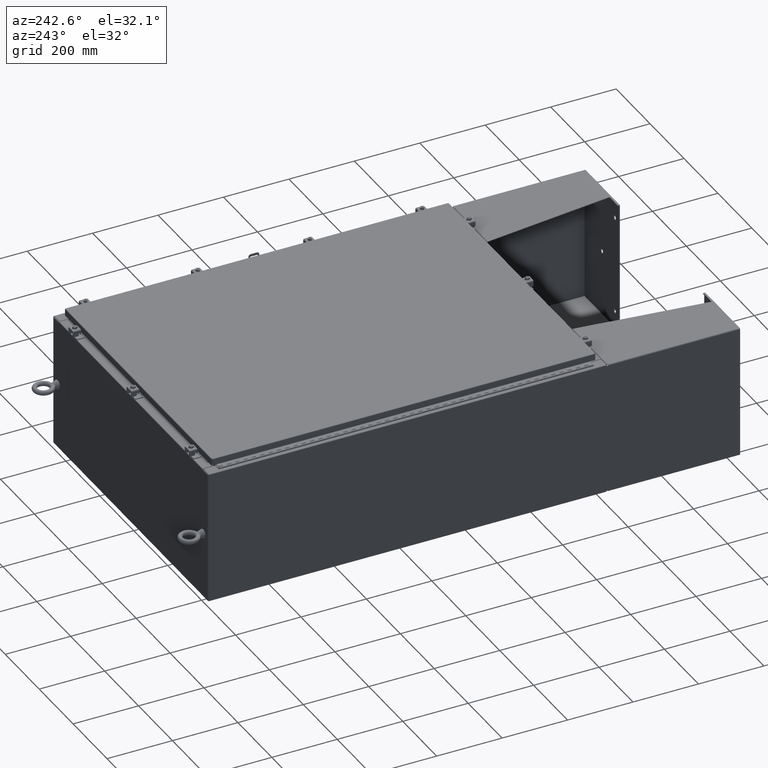
[diagram: clean part render]
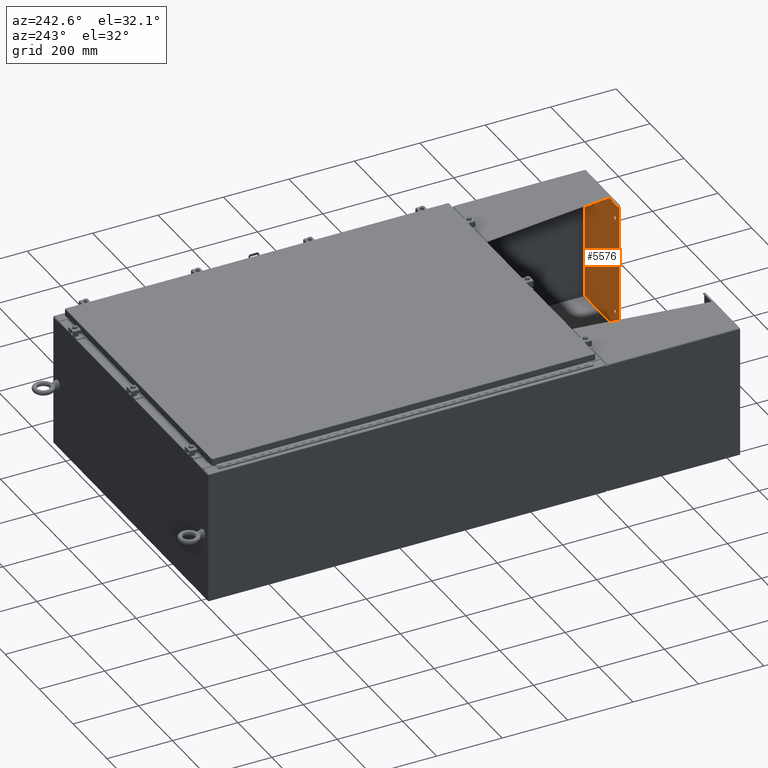
[diagram: same view with one face highlighted and labeled with its STEP entity id]
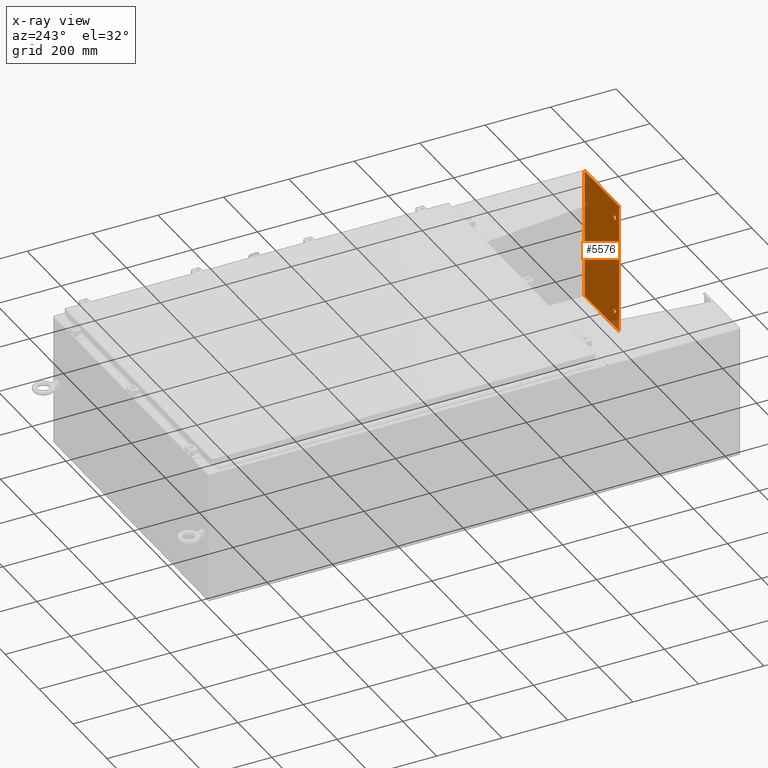
[diagram: x-ray of the same camera — body ghosted, the highlighted face saturated]
A machine part, auxiliary view. The second image highlights one B-rep face of the part: STEP entity #5576.
The next image is the same camera in x-ray: the body ghosted, the highlighted face saturated — about 2% of this face is hidden behind the body in this view.
In plain terms, the highlighted planar face has unit normal (0, -1, 0).
Its self-contained STEP definition (entity closure, byte-faithful):
#180 = DIRECTION ( 'NONE',  ( -1.000000000000000000, 0.0000000000000000000, -0.0000000000000000000 ) ) ;
#272 = CARTESIAN_POINT ( 'NONE',  ( -0.2500000000000000000, 3.061616997868383000E-017, 0.0000000000000000000 ) ) ;
#365 = CARTESIAN_POINT ( 'NONE',  ( -7.878999999999998700, 4.000000000000000000, 0.0000000000000000000 ) ) ;
#379 = EDGE_LOOP ( 'NONE', ( #52944, #54684 ) ) ;
#812 = VECTOR ( 'NONE', #45136, 39.37007874015748100 ) ;
#1072 = DIRECTION ( 'NONE',  ( 0.0000000000000000000, 1.000000000000000000, 0.0000000000000000000 ) ) ;
#1652 = ORIENTED_EDGE ( 'NONE', *, *, #47703, .T. ) ;
#2549 = LINE ( 'NONE', #4619, #37271 ) ;
#2705 = VERTEX_POINT ( 'NONE', #31404 ) ;
#3082 = DIRECTION ( 'NONE',  ( -1.000000000000000000, 0.0000000000000000000, 0.0000000000000000000 ) ) ;
#3493 = FACE_OUTER_BOUND ( 'NONE', #6929, .T. ) ;
#3902 = PLANE ( 'NONE',  #28938 ) ;
#3903 = DIRECTION ( 'NONE',  ( 1.000000000000000000, 0.0000000000000000000, 0.0000000000000000000 ) ) ;
#4619 = CARTESIAN_POINT ( 'NONE',  ( -7.878999999999998700, 4.000000000000000000, 0.0000000000000000000 ) ) ;
#4633 = ORIENTED_EDGE ( 'NONE', *, *, #10437, .T. ) ;
#5387 = VERTEX_POINT ( 'NONE', #54740 ) ;
#5576 = ADVANCED_FACE ( 'NONE', ( #3493, #50274, #26144, #14083 ), #3902, .F. ) ;
#5869 = AXIS2_PLACEMENT_3D ( 'NONE', #18776, #12495, #3903 ) ;
#6929 = EDGE_LOOP ( 'NONE', ( #23122, #8854, #42287, #1652 ) ) ;
#7060 = CARTESIAN_POINT ( 'NONE',  ( 5.878999999999999600, -2.999999999999999600, 0.0000000000000000000 ) ) ;
#8854 = ORIENTED_EDGE ( 'NONE', *, *, #31904, .T. ) ;
#8920 = EDGE_CURVE ( 'NONE', #26834, #26667, #28616, .T. ) ;
#9148 = CIRCLE ( 'NONE', #14851, 0.2499999999999998100 ) ;
#9420 = AXIS2_PLACEMENT_3D ( 'NONE', #46767, #47742, #13869 ) ;
#9776 = DIRECTION ( 'NONE',  ( 0.0000000000000000000, 0.0000000000000000000, 1.000000000000000000 ) ) ;
#9907 = CARTESIAN_POINT ( 'NONE',  ( -5.878999999999999600, -2.999999999999999600, 0.0000000000000000000 ) ) ;
#10437 = EDGE_CURVE ( 'NONE', #38586, #36026, #40825, .T. ) ;
#11426 = EDGE_LOOP ( 'NONE', ( #4633, #46634 ) ) ;
#11504 = VERTEX_POINT ( 'NONE', #47169 ) ;
#12112 = CARTESIAN_POINT ( 'NONE',  ( 7.879000000000000400, 4.000000000000000000, 0.0000000000000000000 ) ) ;
#12337 = VERTEX_POINT ( 'NONE', #58162 ) ;
#12495 = DIRECTION ( 'NONE',  ( 0.0000000000000000000, 0.0000000000000000000, 1.000000000000000000 ) ) ;
#13869 = DIRECTION ( 'NONE',  ( -1.000000000000000000, 0.0000000000000000000, 0.0000000000000000000 ) ) ;
#14083 = FACE_BOUND ( 'NONE', #11426, .T. ) ;
#14202 = EDGE_CURVE ( 'NONE', #36026, #38586, #44027, .T. ) ;
#14444 = DIRECTION ( 'NONE',  ( 1.000000000000000000, 0.0000000000000000000, 0.0000000000000000000 ) ) ;
#14851 = AXIS2_PLACEMENT_3D ( 'NONE', #9907, #41629, #14444 ) ;
#15098 = CARTESIAN_POINT ( 'NONE',  ( 0.0000000000000000000, 0.0000000000000000000, 0.0000000000000000000 ) ) ;
#16141 = DIRECTION ( 'NONE',  ( -0.0000000000000000000, -0.0000000000000000000, -1.000000000000000000 ) ) ;
#16331 = CARTESIAN_POINT ( 'NONE',  ( 5.628999999999999600, -2.999999999999999600, 0.0000000000000000000 ) ) ;
#17368 = CARTESIAN_POINT ( 'NONE',  ( -7.878999999999998700, -4.000000000000000000, 0.0000000000000000000 ) ) ;
#18776 = CARTESIAN_POINT ( 'NONE',  ( 0.0000000000000000000, 0.0000000000000000000, 0.0000000000000000000 ) ) ;
#19659 = DIRECTION ( 'NONE',  ( 1.000000000000000000, 0.0000000000000000000, 0.0000000000000000000 ) ) ;
#22558 = LINE ( 'NONE', #40599, #58650 ) ;
#23122 = ORIENTED_EDGE ( 'NONE', *, *, #29430, .T. ) ;
#24318 = ORIENTED_EDGE ( 'NONE', *, *, #34470, .F. ) ;
#24767 = EDGE_CURVE ( 'NONE', #26667, #26834, #35636, .T. ) ;
#26144 = FACE_BOUND ( 'NONE', #49482, .T. ) ;
#26667 = VERTEX_POINT ( 'NONE', #272 ) ;
#26721 = AXIS2_PLACEMENT_3D ( 'NONE', #36945, #9776, #41492 ) ;
#26834 = VERTEX_POINT ( 'NONE', #28153 ) ;
#28061 = VECTOR ( 'NONE', #1072, 39.37007874015748100 ) ;
#28153 = CARTESIAN_POINT ( 'NONE',  ( 0.2500000000000000000, 0.0000000000000000000, 0.0000000000000000000 ) ) ;
#28616 = CIRCLE ( 'NONE', #42758, 0.2500000000000000000 ) ;
#28716 = VERTEX_POINT ( 'NONE', #365 ) ;
#28938 = AXIS2_PLACEMENT_3D ( 'NONE', #12112, #29533, #180 ) ;
#29430 = EDGE_CURVE ( 'NONE', #12337, #2705, #41563, .T. ) ;
#29533 = DIRECTION ( 'NONE',  ( 0.0000000000000000000, 0.0000000000000000000, -1.000000000000000000 ) ) ;
#31404 = CARTESIAN_POINT ( 'NONE',  ( 7.879000000000000400, 4.000000000000000000, 0.0000000000000000000 ) ) ;
#31904 = EDGE_CURVE ( 'NONE', #2705, #28716, #2549, .T. ) ;
#32055 = CARTESIAN_POINT ( 'NONE',  ( -7.878999999999998700, -4.000000000000000000, 0.0000000000000000000 ) ) ;
#34470 = EDGE_CURVE ( 'NONE', #5387, #11504, #41337, .T. ) ;
#35636 = CIRCLE ( 'NONE', #5869, 0.2500000000000000000 ) ;
#36026 = VERTEX_POINT ( 'NONE', #16331 ) ;
#36316 = DIRECTION ( 'NONE',  ( -1.000000000000000000, -0.0000000000000000000, -0.0000000000000000000 ) ) ;
#36945 = CARTESIAN_POINT ( 'NONE',  ( -5.878999999999999600, -2.999999999999999600, 0.0000000000000000000 ) ) ;
#36949 = LINE ( 'NONE', #32055, #812 ) ;
#37271 = VECTOR ( 'NONE', #36316, 39.37007874015748100 ) ;
#38586 = VERTEX_POINT ( 'NONE', #54947 ) ;
#40389 = DIRECTION ( 'NONE',  ( -0.0000000000000000000, -1.000000000000000000, -0.0000000000000000000 ) ) ;
#40599 = CARTESIAN_POINT ( 'NONE',  ( -7.878999999999998700, -4.000000000000000000, 0.0000000000000000000 ) ) ;
#40825 = CIRCLE ( 'NONE', #9420, 0.2499999999999998100 ) ;
#41337 = CIRCLE ( 'NONE', #26721, 0.2499999999999998100 ) ;
#41492 = DIRECTION ( 'NONE',  ( 1.000000000000000000, 0.0000000000000000000, 0.0000000000000000000 ) ) ;
#41563 = LINE ( 'NONE', #55283, #28061 ) ;
#41629 = DIRECTION ( 'NONE',  ( 0.0000000000000000000, 0.0000000000000000000, 1.000000000000000000 ) ) ;
#42287 = ORIENTED_EDGE ( 'NONE', *, *, #49495, .T. ) ;
#42758 = AXIS2_PLACEMENT_3D ( 'NONE', #15098, #46812, #19659 ) ;
#44027 = CIRCLE ( 'NONE', #46381, 0.2499999999999998100 ) ;
#45136 = DIRECTION ( 'NONE',  ( 1.000000000000000000, 0.0000000000000000000, 0.0000000000000000000 ) ) ;
#46381 = AXIS2_PLACEMENT_3D ( 'NONE', #7060, #16141, #3082 ) ;
#46634 = ORIENTED_EDGE ( 'NONE', *, *, #14202, .T. ) ;
#46767 = CARTESIAN_POINT ( 'NONE',  ( 5.878999999999999600, -2.999999999999999600, 0.0000000000000000000 ) ) ;
#46812 = DIRECTION ( 'NONE',  ( 0.0000000000000000000, 0.0000000000000000000, 1.000000000000000000 ) ) ;
#47169 = CARTESIAN_POINT ( 'NONE',  ( -5.628999999999999600, -2.999999999999999600, 0.0000000000000000000 ) ) ;
#47703 = EDGE_CURVE ( 'NONE', #54353, #12337, #36949, .T. ) ;
#47742 = DIRECTION ( 'NONE',  ( -0.0000000000000000000, -0.0000000000000000000, -1.000000000000000000 ) ) ;
#48981 = EDGE_CURVE ( 'NONE', #11504, #5387, #9148, .T. ) ;
#49482 = EDGE_LOOP ( 'NONE', ( #51406, #24318 ) ) ;
#49495 = EDGE_CURVE ( 'NONE', #28716, #54353, #22558, .T. ) ;
#50274 = FACE_BOUND ( 'NONE', #379, .T. ) ;
#51406 = ORIENTED_EDGE ( 'NONE', *, *, #48981, .F. ) ;
#52944 = ORIENTED_EDGE ( 'NONE', *, *, #8920, .F. ) ;
#54353 = VERTEX_POINT ( 'NONE', #17368 ) ;
#54684 = ORIENTED_EDGE ( 'NONE', *, *, #24767, .F. ) ;
#54740 = CARTESIAN_POINT ( 'NONE',  ( -6.128999999999998700, -2.999999999999999600, 0.0000000000000000000 ) ) ;
#54947 = CARTESIAN_POINT ( 'NONE',  ( 6.128999999999998700, -2.999999999999999600, 0.0000000000000000000 ) ) ;
#55283 = CARTESIAN_POINT ( 'NONE',  ( 7.879000000000000400, -4.000000000000000000, 0.0000000000000000000 ) ) ;
#58162 = CARTESIAN_POINT ( 'NONE',  ( 7.879000000000000400, -4.000000000000000000, 0.0000000000000000000 ) ) ;
#58650 = VECTOR ( 'NONE', #40389, 39.37007874015748100 ) ;